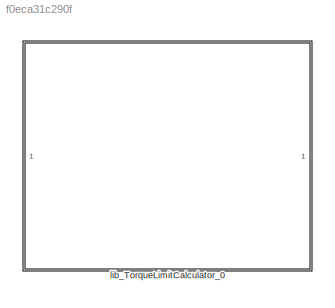
MODEL slx_f0eca31c290f
KIND library
CONFIG AbsTol = auto
CONFIG EnableMultiTasking = off
CONFIG FixedStep = auto
CONFIG MaxStep = auto
CONFIG MinStep = auto
CONFIG RelTol = 1e-3
CONFIG SampleTimeConstraint = Unconstrained
CONFIG SolverName = VariableStepAuto
CONFIG StartTime = 0.0
CONFIG StopTime = 10.0
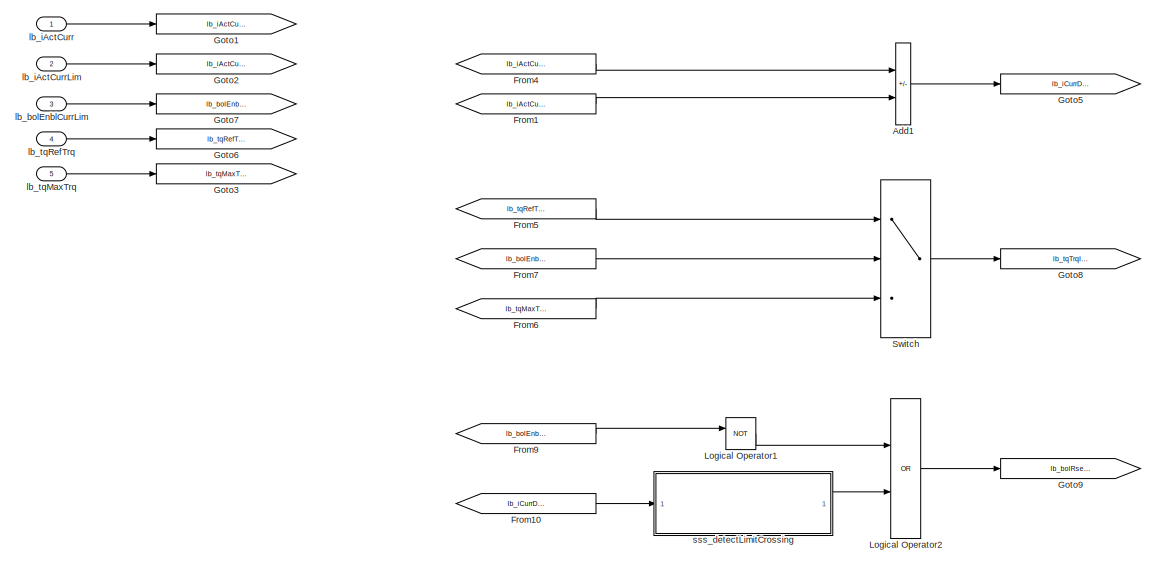
[diagram: lib_TorqueLimitCalculator_0 - part 1/2, left side, full height]
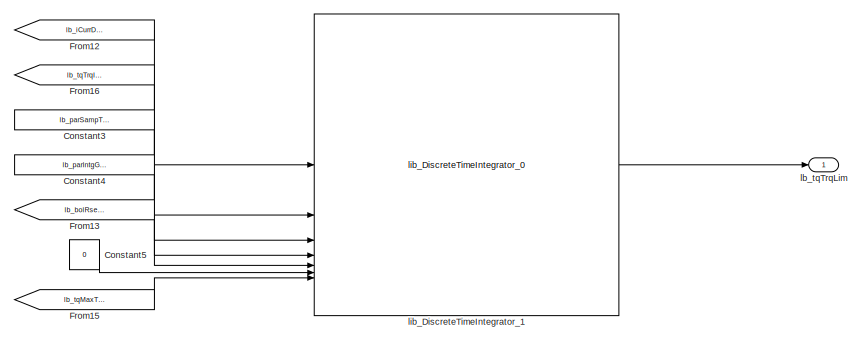
[diagram: lib_TorqueLimitCalculator_0 - part 2/2, middle right region]
BLOCK [SubSystem] lib_TorqueLimitCalculator_0
BLOCK [Sum] lib_TorqueLimitCalculator_0/Add1
  IconShape = rectangular
  Inputs = -+
  OutDataTypeStr = Inherit: Same as first input
  RndMeth = Simplest
BLOCK [Constant] lib_TorqueLimitCalculator_0/Constant3
  Value = lb_parSampTime
BLOCK [Constant] lib_TorqueLimitCalculator_0/Constant4
  Value = lb_parIntgGain
BLOCK [Constant] lib_TorqueLimitCalculator_0/Constant5
  OutDataTypeStr = lb_parOutpDataType
  Value = 0
BLOCK [From] lib_TorqueLimitCalculator_0/From1
  GotoTag = lb_iActCurrLim
BLOCK [From] lib_TorqueLimitCalculator_0/From10
  GotoTag = lb_iCurrDiff
BLOCK [From] lib_TorqueLimitCalculator_0/From12
  GotoTag = lb_iCurrDiff
BLOCK [From] lib_TorqueLimitCalculator_0/From13
  GotoTag = lb_bolRsetCurrLim
BLOCK [From] lib_TorqueLimitCalculator_0/From15
  GotoTag = lb_tqMaxTrq
BLOCK [From] lib_TorqueLimitCalculator_0/From16
  GotoTag = lb_tqTrqInit
BLOCK [From] lib_TorqueLimitCalculator_0/From4
  GotoTag = lb_iActCurr
BLOCK [From] lib_TorqueLimitCalculator_0/From5
  GotoTag = lb_tqRefTrq
BLOCK [From] lib_TorqueLimitCalculator_0/From6
  GotoTag = lb_tqMaxTrq
BLOCK [From] lib_TorqueLimitCalculator_0/From7
  GotoTag = lb_bolEnblCurrLim
BLOCK [From] lib_TorqueLimitCalculator_0/From9
  GotoTag = lb_bolEnblCurrLim
BLOCK [Goto] lib_TorqueLimitCalculator_0/Goto1
  GotoTag = lb_iActCurr
BLOCK [Goto] lib_TorqueLimitCalculator_0/Goto2
  GotoTag = lb_iActCurrLim
BLOCK [Goto] lib_TorqueLimitCalculator_0/Goto3
  GotoTag = lb_tqMaxTrq
BLOCK [Goto] lib_TorqueLimitCalculator_0/Goto5
  GotoTag = lb_iCurrDiff
BLOCK [Goto] lib_TorqueLimitCalculator_0/Goto6
  GotoTag = lb_tqRefTrq
BLOCK [Goto] lib_TorqueLimitCalculator_0/Goto7
  GotoTag = lb_bolEnblCurrLim
BLOCK [Goto] lib_TorqueLimitCalculator_0/Goto8
  GotoTag = lb_tqTrqInit
BLOCK [Goto] lib_TorqueLimitCalculator_0/Goto9
  GotoTag = lb_bolRsetCurrLim
BLOCK [Logic] lib_TorqueLimitCalculator_0/Logical Operator1
  AllPortsSameDT = off
  Operator = NOT
  OutDataTypeStr = boolean
BLOCK [Logic] lib_TorqueLimitCalculator_0/Logical Operator2
  AllPortsSameDT = off
  Operator = OR
  OutDataTypeStr = boolean
BLOCK [Switch] lib_TorqueLimitCalculator_0/Switch
  Criteria = u2 ~= 0
  InputSameDT = off
  SaturateOnIntegerOverflow = off
BLOCK [Inport] lib_TorqueLimitCalculator_0/lb_bolEnblCurrLim
  Port = 3
BLOCK [Inport] lib_TorqueLimitCalculator_0/lb_iActCurr
BLOCK [Inport] lib_TorqueLimitCalculator_0/lb_iActCurrLim
  Port = 2
BLOCK [Inport] lib_TorqueLimitCalculator_0/lb_tqMaxTrq
  Port = 5
BLOCK [Inport] lib_TorqueLimitCalculator_0/lb_tqRefTrq
  Port = 4
BLOCK [Outport] lib_TorqueLimitCalculator_0/lb_tqTrqLim
BLOCK [Reference] lib_TorqueLimitCalculator_0/lib_DiscreteTimeIntegrator_1  REF=lib_discrete_time_integrator/lib_DiscreteTimeIntegrator_0
  LibrarySourceBlock = vhit_control_library/lib_DiscreteTimeIntegrator_0
  SourceBlock = lib_discrete_time_integrator/lib_DiscreteTimeIntegrator_0
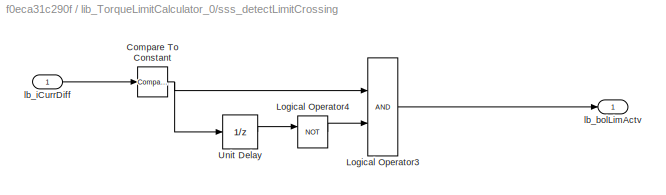
BLOCK [SubSystem] lib_TorqueLimitCalculator_0/sss_detectLimitCrossing
BLOCK [Reference] lib_TorqueLimitCalculator_0/sss_detectLimitCrossing/Compare To Constant  REF=simulink/Logic and Bit
Operations/Compare
To Constant
  SourceBlock = simulink/Logic and Bit\nOperations/Compare\nTo Constant
  SourceType = Compare To Constant
BLOCK [Logic] lib_TorqueLimitCalculator_0/sss_detectLimitCrossing/Logical Operator3
  AllPortsSameDT = off
  OutDataTypeStr = boolean
BLOCK [Logic] lib_TorqueLimitCalculator_0/sss_detectLimitCrossing/Logical Operator4
  AllPortsSameDT = off
  Operator = NOT
  OutDataTypeStr = boolean
BLOCK [UnitDelay] lib_TorqueLimitCalculator_0/sss_detectLimitCrossing/Unit Delay
  HasFrameUpgradeWarning = on
  SampleTime = -1
BLOCK [Outport] lib_TorqueLimitCalculator_0/sss_detectLimitCrossing/lb_bolLimActv
BLOCK [Inport] lib_TorqueLimitCalculator_0/sss_detectLimitCrossing/lb_iCurrDiff
LINE lib_TorqueLimitCalculator_0/Add1:1 -> lib_TorqueLimitCalculator_0/Goto5:1
LINE lib_TorqueLimitCalculator_0/Constant3:1 -> lib_TorqueLimitCalculator_0/lib_DiscreteTimeIntegrator_1:3
LINE lib_TorqueLimitCalculator_0/Constant4:1 -> lib_TorqueLimitCalculator_0/lib_DiscreteTimeIntegrator_1:4
LINE lib_TorqueLimitCalculator_0/Constant5:1 -> lib_TorqueLimitCalculator_0/lib_DiscreteTimeIntegrator_1:6
LINE lib_TorqueLimitCalculator_0/From10:1 -> lib_TorqueLimitCalculator_0/sss_detectLimitCrossing:1
LINE lib_TorqueLimitCalculator_0/From12:1 -> lib_TorqueLimitCalculator_0/lib_DiscreteTimeIntegrator_1:1
LINE lib_TorqueLimitCalculator_0/From13:1 -> lib_TorqueLimitCalculator_0/lib_DiscreteTimeIntegrator_1:5
LINE lib_TorqueLimitCalculator_0/From15:1 -> lib_TorqueLimitCalculator_0/lib_DiscreteTimeIntegrator_1:7
LINE lib_TorqueLimitCalculator_0/From16:1 -> lib_TorqueLimitCalculator_0/lib_DiscreteTimeIntegrator_1:2
LINE lib_TorqueLimitCalculator_0/From1:1 -> lib_TorqueLimitCalculator_0/Add1:2
LINE lib_TorqueLimitCalculator_0/From4:1 -> lib_TorqueLimitCalculator_0/Add1:1
LINE lib_TorqueLimitCalculator_0/From5:1 -> lib_TorqueLimitCalculator_0/Switch:1
LINE lib_TorqueLimitCalculator_0/From6:1 -> lib_TorqueLimitCalculator_0/Switch:3
LINE lib_TorqueLimitCalculator_0/From7:1 -> lib_TorqueLimitCalculator_0/Switch:2
LINE lib_TorqueLimitCalculator_0/From9:1 -> lib_TorqueLimitCalculator_0/Logical Operator1:1
LINE lib_TorqueLimitCalculator_0/Logical Operator1:1 -> lib_TorqueLimitCalculator_0/Logical Operator2:1
LINE lib_TorqueLimitCalculator_0/Logical Operator2:1 -> lib_TorqueLimitCalculator_0/Goto9:1
LINE lib_TorqueLimitCalculator_0/Switch:1 -> lib_TorqueLimitCalculator_0/Goto8:1
LINE lib_TorqueLimitCalculator_0/lb_bolEnblCurrLim:1 -> lib_TorqueLimitCalculator_0/Goto7:1
LINE lib_TorqueLimitCalculator_0/lb_iActCurr:1 -> lib_TorqueLimitCalculator_0/Goto1:1
LINE lib_TorqueLimitCalculator_0/lb_iActCurrLim:1 -> lib_TorqueLimitCalculator_0/Goto2:1
LINE lib_TorqueLimitCalculator_0/lb_tqMaxTrq:1 -> lib_TorqueLimitCalculator_0/Goto3:1
LINE lib_TorqueLimitCalculator_0/lb_tqRefTrq:1 -> lib_TorqueLimitCalculator_0/Goto6:1
LINE lib_TorqueLimitCalculator_0/lib_DiscreteTimeIntegrator_1:1 -> lib_TorqueLimitCalculator_0/lb_tqTrqLim:1
NET lib_TorqueLimitCalculator_0/sss_detectLimitCrossing/Compare To Constant:1 -> lib_TorqueLimitCalculator_0/sss_detectLimitCrossing/Logical Operator3:1, lib_TorqueLimitCalculator_0/sss_detectLimitCrossing/Unit Delay:1
LINE lib_TorqueLimitCalculator_0/sss_detectLimitCrossing/Logical Operator3:1 -> lib_TorqueLimitCalculator_0/sss_detectLimitCrossing/lb_bolLimActv:1
LINE lib_TorqueLimitCalculator_0/sss_detectLimitCrossing/Logical Operator4:1 -> lib_TorqueLimitCalculator_0/sss_detectLimitCrossing/Logical Operator3:2
LINE lib_TorqueLimitCalculator_0/sss_detectLimitCrossing/Unit Delay:1 -> lib_TorqueLimitCalculator_0/sss_detectLimitCrossing/Logical Operator4:1
LINE lib_TorqueLimitCalculator_0/sss_detectLimitCrossing/lb_iCurrDiff:1 -> lib_TorqueLimitCalculator_0/sss_detectLimitCrossing/Compare To Constant:1
LINE lib_TorqueLimitCalculator_0/sss_detectLimitCrossing:1 -> lib_TorqueLimitCalculator_0/Logical Operator2:2
note: NET lines group one-source signal fan-out (src -> all destinations, sorted); 1:1 wires keep LINE
